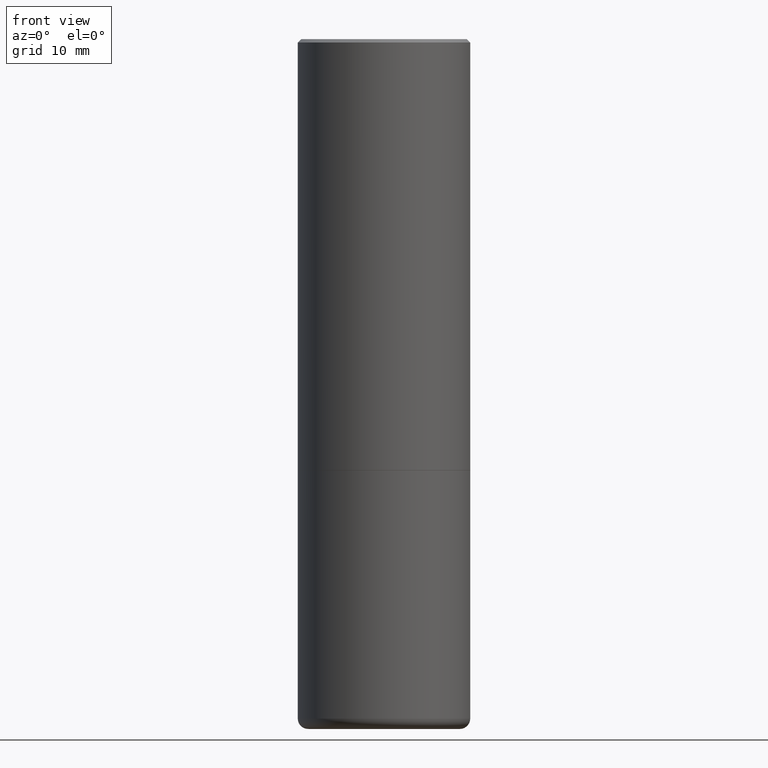
[diagram: clean part render]
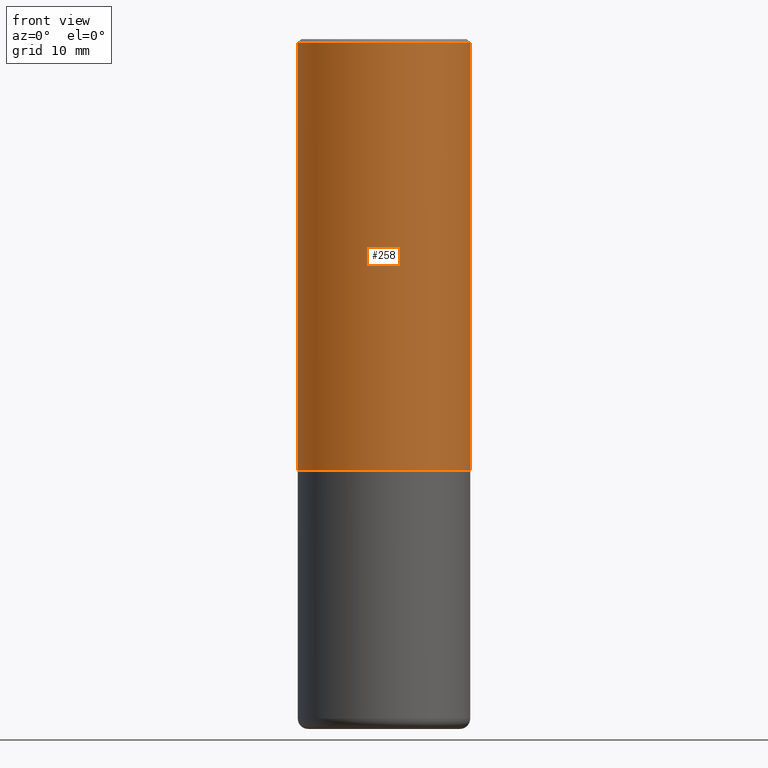
[diagram: same view with one face highlighted and labeled with its STEP entity id]
A machine part, front view. The second image highlights one B-rep face of the part: STEP entity #258.
In plain terms, the highlighted cylindrical surface (partial cylindrical patch) has radius 12.7 mm, axis along (-0, 0, 1).
Its self-contained STEP definition (entity closure, byte-faithful):
#1 = DIRECTION ( 'NONE',  ( 1.000000000000000000, -6.982962677686266711E-15, 0.000000000000000000 ) ) ;
#8 = CIRCLE ( 'NONE', #415, 0.4999999999999997224 ) ;
#16 = AXIS2_PLACEMENT_3D ( 'NONE', #434, #58, #195 ) ;
#23 = VERTEX_POINT ( 'NONE', #308 ) ;
#58 = DIRECTION ( 'NONE',  ( -2.445468806185136597E-29, 3.491481338843145583E-15, 1.000000000000000000 ) ) ;
#61 = CYLINDRICAL_SURFACE ( 'NONE', #16, 0.4999999999999998335 ) ;
#88 = CARTESIAN_POINT ( 'NONE',  ( 6.111226546656657010E-29, -8.725211865769021935E-15, -2.499000000000000110 ) ) ;
#97 = ORIENTED_EDGE ( 'NONE', *, *, #390, .T. ) ;
#100 = FACE_OUTER_BOUND ( 'NONE', #113, .T. ) ;
#103 = DIRECTION ( 'NONE',  ( 1.000000000000000000, -6.982962677686265133E-15, 0.000000000000000000 ) ) ;
#113 = EDGE_LOOP ( 'NONE', ( #336, #236, #97, #256 ) ) ;
#122 = AXIS2_PLACEMENT_3D ( 'NONE', #88, #403, #103 ) ;
#130 = CIRCLE ( 'NONE', #122, 0.5000000000000000000 ) ;
#160 = VERTEX_POINT ( 'NONE', #394 ) ;
#170 = DIRECTION ( 'NONE',  ( -2.445468806185136877E-29, 3.491481338843145188E-15, 1.000000000000000000 ) ) ;
#175 = DIRECTION ( 'NONE',  ( -2.445468806185136597E-29, 3.491481338843145583E-15, 1.000000000000000000 ) ) ;
#195 = DIRECTION ( 'NONE',  ( 1.000000000000000000, -6.982962677686267499E-15, 4.876176775795936353E-29 ) ) ;
#212 = CARTESIAN_POINT ( 'NONE',  ( 4.890937612370301184E-31, -6.982962677686329819E-17, -0.02000000000000011144 ) ) ;
#236 = ORIENTED_EDGE ( 'NONE', *, *, #249, .T. ) ;
#245 = LINE ( 'NONE', #337, #428 ) ;
#249 = EDGE_CURVE ( 'NONE', #160, #321, #130, .T. ) ;
#253 = EDGE_CURVE ( 'NONE', #160, #395, #330, .T. ) ;
#256 = ORIENTED_EDGE ( 'NONE', *, *, #411, .F. ) ;
#258 = ADVANCED_FACE ( 'NONE', ( #100 ), #61, .T. ) ;
#265 = CARTESIAN_POINT ( 'NONE',  ( 0.5000000000000000000, -1.221669320461215371E-14, -2.499000000000000110 ) ) ;
#308 = CARTESIAN_POINT ( 'NONE',  ( 0.4999999999999997224, -3.500078625662627502E-15, -0.02000000000000011144 ) ) ;
#321 = VERTEX_POINT ( 'NONE', #265 ) ;
#330 = LINE ( 'NONE', #357, #338 ) ;
#336 = ORIENTED_EDGE ( 'NONE', *, *, #253, .F. ) ;
#337 = CARTESIAN_POINT ( 'NONE',  ( 0.4999999999999998335, -3.491481338843132566E-15, 2.438088387897967336E-29 ) ) ;
#338 = VECTOR ( 'NONE', #353, 39.37007874015748143 ) ;
#353 = DIRECTION ( 'NONE',  ( -2.445468806185136877E-29, 3.491481338843145188E-15, 1.000000000000000000 ) ) ;
#357 = CARTESIAN_POINT ( 'NONE',  ( -0.4999999999999998335, 3.552713678800499746E-15, -2.459467545127452330E-29 ) ) ;
#383 = CARTESIAN_POINT ( 'NONE',  ( -0.4999999999999997224, 3.421651712066268085E-15, -0.02000000000000011144 ) ) ;
#390 = EDGE_CURVE ( 'NONE', #321, #23, #245, .T. ) ;
#394 = CARTESIAN_POINT ( 'NONE',  ( -0.5000000000000000000, -8.448070674724411945E-16, -2.499000000000000110 ) ) ;
#395 = VERTEX_POINT ( 'NONE', #383 ) ;
#403 = DIRECTION ( 'NONE',  ( -2.445468806185136597E-29, 3.491481338843145583E-15, 1.000000000000000000 ) ) ;
#411 = EDGE_CURVE ( 'NONE', #395, #23, #8, .T. ) ;
#415 = AXIS2_PLACEMENT_3D ( 'NONE', #212, #175, #1 ) ;
#428 = VECTOR ( 'NONE', #170, 39.37007874015748143 ) ;
#434 = CARTESIAN_POINT ( 'NONE',  ( 0.000000000000000000, 0.000000000000000000, 0.000000000000000000 ) ) ;